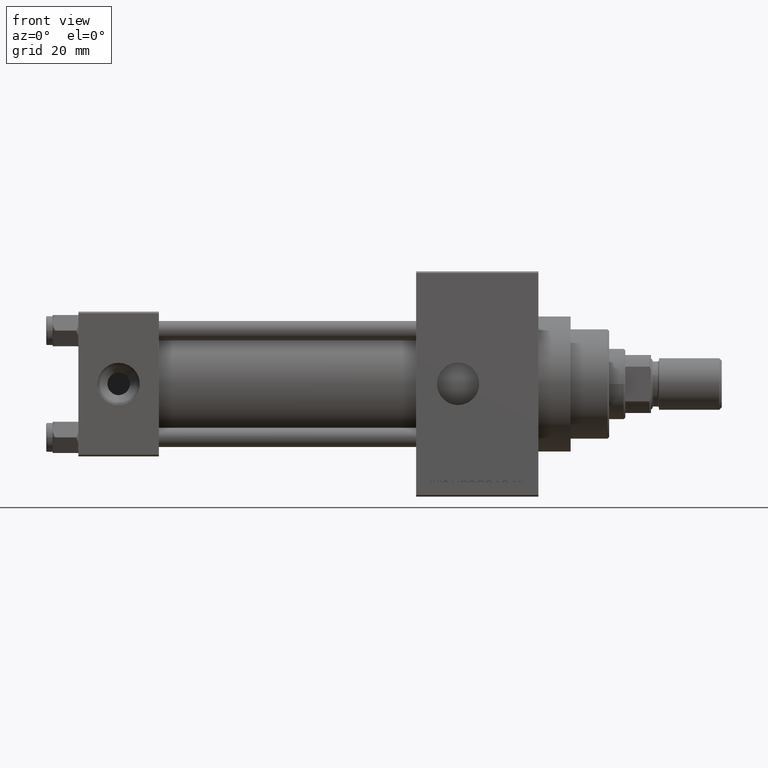
[diagram: clean part render]
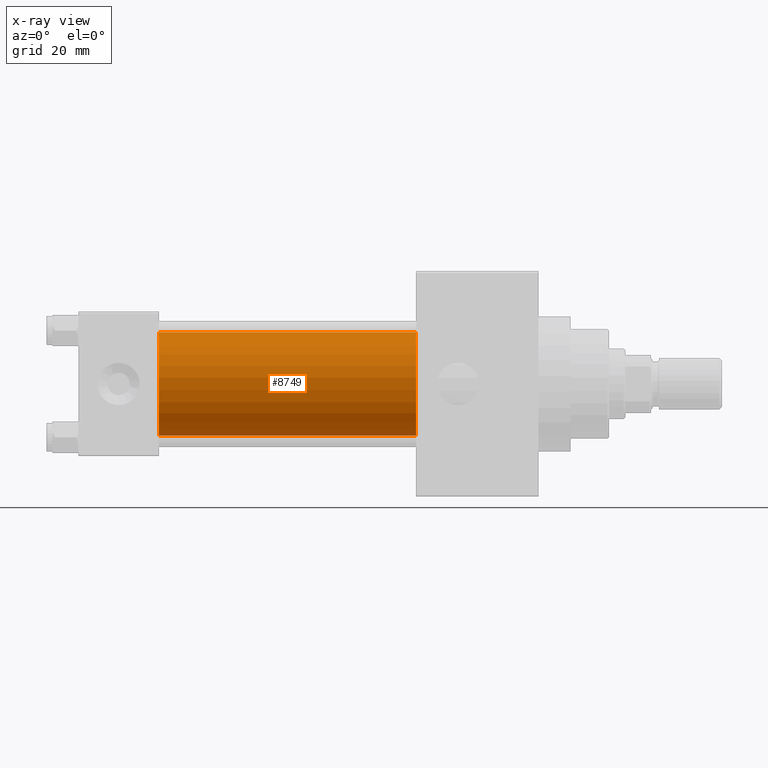
[diagram: x-ray — body ghosted, one internal face saturated and labeled with its STEP entity id]
A machine part, front view, then the same camera in x-ray: the body is ghosted and one INTERNAL B-rep face — a face not visible from any outside direction — is saturated and labeled: STEP entity #8749.
In plain terms, the highlighted cylindrical surface (partial cylindrical patch) has radius 16 mm, axis along (-1, -0, -0).
Its self-contained STEP definition (entity closure, byte-faithful):
#2327 = EDGE_CURVE ( 'NONE', #3395, #30783, #21612, .T. ) ;
#3395 = VERTEX_POINT ( 'NONE', #48898 ) ;
#3655 = EDGE_CURVE ( 'NONE', #30783, #6659, #40813, .T. ) ;
#4512 = CARTESIAN_POINT ( 'NONE',  ( 25.00000000000000000, -2.602085213965210642E-15, 0.000000000000000000 ) ) ;
#6659 = VERTEX_POINT ( 'NONE', #41083 ) ;
#8280 = DIRECTION ( 'NONE',  ( 0.000000000000000000, 0.000000000000000000, -1.000000000000000000 ) ) ;
#8358 = VERTEX_POINT ( 'NONE', #39159 ) ;
#8749 = ADVANCED_FACE ( 'NONE', ( #26636 ), #15833, .F. ) ;
#9580 = CARTESIAN_POINT ( 'NONE',  ( 105.0000000000000142, -2.602085213965210642E-15, 16.00000000000000000 ) ) ;
#12017 = CARTESIAN_POINT ( 'NONE',  ( 105.0000000000000142, -2.602085213965210642E-15, 0.000000000000000000 ) ) ;
#14474 = EDGE_LOOP ( 'NONE', ( #16295, #23612, #17805, #24016 ) ) ;
#15782 = DIRECTION ( 'NONE',  ( 1.000000000000000000, 0.000000000000000000, 0.000000000000000000 ) ) ;
#15833 = CYLINDRICAL_SURFACE ( 'NONE', #24050, 16.00000000000000000 ) ;
#16260 = EDGE_CURVE ( 'NONE', #8358, #6659, #29601, .T. ) ;
#16276 = AXIS2_PLACEMENT_3D ( 'NONE', #12017, #15782, #35043 ) ;
#16295 = ORIENTED_EDGE ( 'NONE', *, *, #43580, .T. ) ;
#17805 = ORIENTED_EDGE ( 'NONE', *, *, #3655, .F. ) ;
#21612 = LINE ( 'NONE', #9580, #30365 ) ;
#22089 = DIRECTION ( 'NONE',  ( -1.000000000000000000, -0.000000000000000000, -0.000000000000000000 ) ) ;
#23612 = ORIENTED_EDGE ( 'NONE', *, *, #16260, .T. ) ;
#24016 = ORIENTED_EDGE ( 'NONE', *, *, #2327, .F. ) ;
#24050 = AXIS2_PLACEMENT_3D ( 'NONE', #31104, #34378, #33891 ) ;
#26636 = FACE_OUTER_BOUND ( 'NONE', #14474, .T. ) ;
#29601 = LINE ( 'NONE', #49138, #41128 ) ;
#30201 = CARTESIAN_POINT ( 'NONE',  ( 25.00000000000000000, -2.602085213965210642E-15, 16.00000000000000000 ) ) ;
#30365 = VECTOR ( 'NONE', #44646, 1000.000000000000000 ) ;
#30783 = VERTEX_POINT ( 'NONE', #30201 ) ;
#31104 = CARTESIAN_POINT ( 'NONE',  ( 105.0000000000000142, -2.602085213965210642E-15, 0.000000000000000000 ) ) ;
#31571 = DIRECTION ( 'NONE',  ( 1.000000000000000000, 0.000000000000000000, 0.000000000000000000 ) ) ;
#33891 = DIRECTION ( 'NONE',  ( 0.000000000000000000, 0.000000000000000000, 1.000000000000000000 ) ) ;
#34287 = AXIS2_PLACEMENT_3D ( 'NONE', #4512, #31571, #8280 ) ;
#34378 = DIRECTION ( 'NONE',  ( -1.000000000000000000, -0.000000000000000000, -0.000000000000000000 ) ) ;
#35043 = DIRECTION ( 'NONE',  ( 0.000000000000000000, 0.000000000000000000, -1.000000000000000000 ) ) ;
#39159 = CARTESIAN_POINT ( 'NONE',  ( 105.0000000000000142, -6.426503353294456087E-16, -16.00000000000000000 ) ) ;
#40813 = CIRCLE ( 'NONE', #34287, 16.00000000000000000 ) ;
#41083 = CARTESIAN_POINT ( 'NONE',  ( 25.00000000000000000, -6.426503353294456087E-16, -16.00000000000000000 ) ) ;
#41128 = VECTOR ( 'NONE', #22089, 1000.000000000000000 ) ;
#43580 = EDGE_CURVE ( 'NONE', #3395, #8358, #47504, .T. ) ;
#44646 = DIRECTION ( 'NONE',  ( -1.000000000000000000, -0.000000000000000000, -0.000000000000000000 ) ) ;
#47504 = CIRCLE ( 'NONE', #16276, 16.00000000000000000 ) ;
#48898 = CARTESIAN_POINT ( 'NONE',  ( 105.0000000000000142, -2.602085213965210642E-15, 16.00000000000000000 ) ) ;
#49138 = CARTESIAN_POINT ( 'NONE',  ( 105.0000000000000142, -6.426503353294456087E-16, -16.00000000000000000 ) ) ;